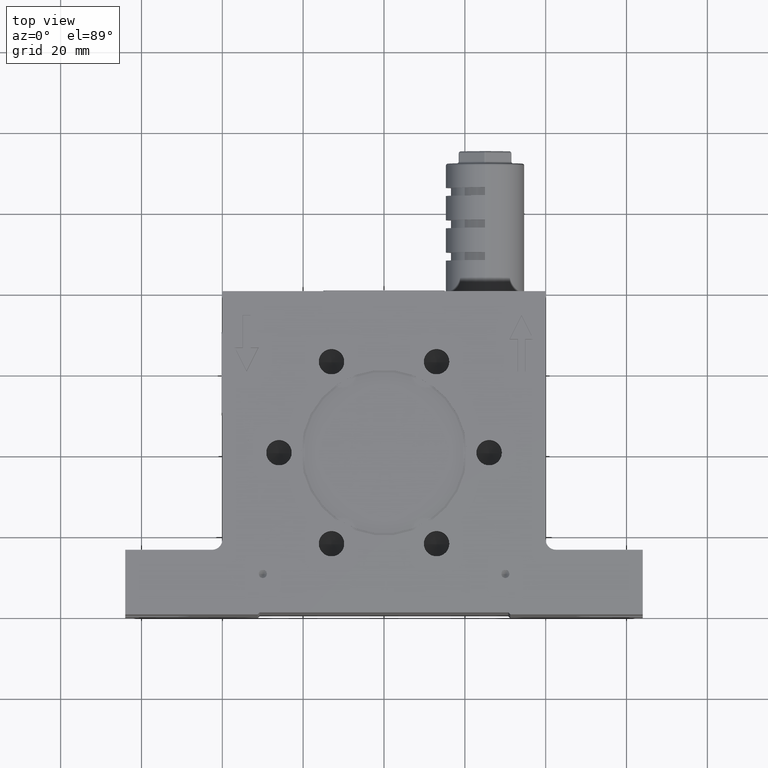
[diagram: clean part render]
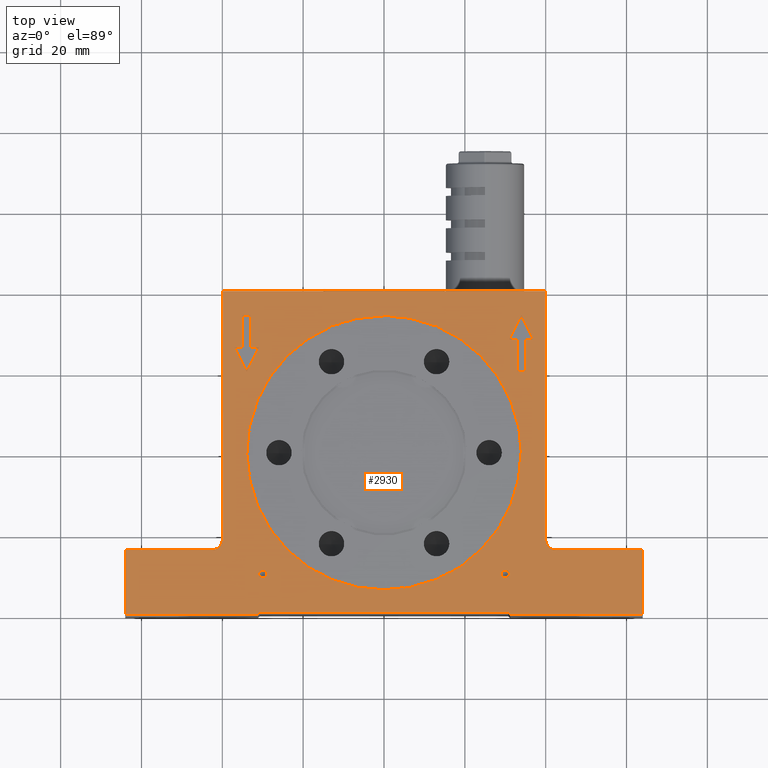
[diagram: same view with one face highlighted and labeled with its STEP entity id]
A machine part, top view. The second image highlights one B-rep face of the part: STEP entity #2930.
In plain terms, the highlighted planar face has unit normal (0, 0, -1).
Its self-contained STEP definition (entity closure, byte-faithful):
#342 = ORIENTED_EDGE ( 'NONE', *, *, #7510, .F. ) ;
#551 = CARTESIAN_POINT ( 'NONE',  ( -42.50000000000000000, -21.50000000000000000, 28.00000000000000000 ) ) ;
#569 = EDGE_CURVE ( 'NONE', #18978, #16020, #17478, .T. ) ;
#574 = VECTOR ( 'NONE', #14555, 1000.000000000000000 ) ;
#695 = DIRECTION ( 'NONE',  ( 8.673617379884039400E-016, -1.000000000000000000, 0.0000000000000000000 ) ) ;
#773 = LINE ( 'NONE', #3795, #19966 ) ;
#827 = FACE_BOUND ( 'NONE', #17860, .T. ) ;
#874 = CARTESIAN_POINT ( 'NONE',  ( 64.00000000000000000, -24.00000000000000000, 28.00000000000000000 ) ) ;
#918 = DIRECTION ( 'NONE',  ( 0.4472135954999575400, 0.8944271909999160800, 0.0000000000000000000 ) ) ;
#952 = CARTESIAN_POINT ( 'NONE',  ( 42.50000000000000000, -24.00000000000000000, 28.00000000000000000 ) ) ;
#987 = VERTEX_POINT ( 'NONE', #15787 ) ;
#999 = VECTOR ( 'NONE', #12358, 1000.000000000000000 ) ;
#1002 = VECTOR ( 'NONE', #8336, 1000.000000000000000 ) ;
#1018 = VERTEX_POINT ( 'NONE', #17572 ) ;
#1026 = VECTOR ( 'NONE', #4516, 1000.000000000000000 ) ;
#1037 = CARTESIAN_POINT ( 'NONE',  ( 40.00000000000000000, -21.50000000000000000, 28.00000000000000000 ) ) ;
#1223 = VECTOR ( 'NONE', #1533, 1000.000000000000000 ) ;
#1396 = VERTEX_POINT ( 'NONE', #10033 ) ;
#1408 = VECTOR ( 'NONE', #695, 1000.000000000000000 ) ;
#1519 = LINE ( 'NONE', #16755, #1002 ) ;
#1525 = CARTESIAN_POINT ( 'NONE',  ( -64.00000000000000000, -40.00000000000000000, 28.00000000000000000 ) ) ;
#1533 = DIRECTION ( 'NONE',  ( 0.7071067811865570100, -0.7071067811865380200, -0.0000000000000000000 ) ) ;
#1576 = VERTEX_POINT ( 'NONE', #19171 ) ;
#1752 = VERTEX_POINT ( 'NONE', #4705 ) ;
#2064 = ORIENTED_EDGE ( 'NONE', *, *, #10287, .T. ) ;
#2207 = LINE ( 'NONE', #10029, #17423 ) ;
#2255 = EDGE_CURVE ( 'NONE', #1752, #14468, #10562, .T. ) ;
#2296 = VERTEX_POINT ( 'NONE', #5503 ) ;
#2496 = VERTEX_POINT ( 'NONE', #1037 ) ;
#2702 = CARTESIAN_POINT ( 'NONE',  ( -35.00000000000000000, 26.00000000000000000, 28.00000000000000000 ) ) ;
#2758 = VECTOR ( 'NONE', #20659, 1000.000000000000000 ) ;
#2809 = ORIENTED_EDGE ( 'NONE', *, *, #6393, .F. ) ;
#2909 = AXIS2_PLACEMENT_3D ( 'NONE', #5555, #9012, #10830 ) ;
#2930 = ADVANCED_FACE ( 'NONE', ( #3982, #20250, #13939, #6094, #18964, #827 ), #7411, .F. ) ;
#2970 = ORIENTED_EDGE ( 'NONE', *, *, #5604, .T. ) ;
#2999 = ORIENTED_EDGE ( 'NONE', *, *, #9069, .F. ) ;
#3076 = EDGE_CURVE ( 'NONE', #19892, #3234, #11325, .T. ) ;
#3202 = VERTEX_POINT ( 'NONE', #9376 ) ;
#3234 = VERTEX_POINT ( 'NONE', #21392 ) ;
#3241 = CARTESIAN_POINT ( 'NONE',  ( 37.00000000000000000, 28.00000000000000000, 28.00000000000000000 ) ) ;
#3260 = CARTESIAN_POINT ( 'NONE',  ( 35.00000000000000000, 28.00000000000000000, 28.00000000000000000 ) ) ;
#3418 = CIRCLE ( 'NONE', #7163, 33.89999999999999900 ) ;
#3492 = EDGE_CURVE ( 'NONE', #14468, #3985, #17635, .T. ) ;
#3560 = ORIENTED_EDGE ( 'NONE', *, *, #13515, .F. ) ;
#3633 = DIRECTION ( 'NONE',  ( 0.0000000000000000000, 0.0000000000000000000, -1.000000000000000000 ) ) ;
#3698 = CARTESIAN_POINT ( 'NONE',  ( -64.00000000000000000, -40.00000000000000000, 28.00000000000000000 ) ) ;
#3716 = ORIENTED_EDGE ( 'NONE', *, *, #6469, .T. ) ;
#3749 = VECTOR ( 'NONE', #10496, 1000.000000000000000 ) ;
#3782 = DIRECTION ( 'NONE',  ( -1.000000000000000000, 0.0000000000000000000, 0.0000000000000000000 ) ) ;
#3795 = CARTESIAN_POINT ( 'NONE',  ( -37.00000000000000000, 26.00000000000000000, 28.00000000000000000 ) ) ;
#3824 = ORIENTED_EDGE ( 'NONE', *, *, #16942, .F. ) ;
#3982 = FACE_BOUND ( 'NONE', #21092, .T. ) ;
#3985 = VERTEX_POINT ( 'NONE', #3260 ) ;
#4062 = VECTOR ( 'NONE', #5859, 1000.000000000000000 ) ;
#4226 = CARTESIAN_POINT ( 'NONE',  ( 33.00000000000000000, 28.00000000000000000, 28.00000000000000000 ) ) ;
#4297 = ORIENTED_EDGE ( 'NONE', *, *, #19732, .T. ) ;
#4392 = CIRCLE ( 'NONE', #14820, 1.000000000000000900 ) ;
#4434 = VECTOR ( 'NONE', #10111, 1000.000000000000000 ) ;
#4442 = CARTESIAN_POINT ( 'NONE',  ( 30.00000000000000000, -30.00000000000000000, 28.00000000000000000 ) ) ;
#4502 = VERTEX_POINT ( 'NONE', #5466 ) ;
#4516 = DIRECTION ( 'NONE',  ( 1.000000000000000000, 0.0000000000000000000, 0.0000000000000000000 ) ) ;
#4562 = ORIENTED_EDGE ( 'NONE', *, *, #5342, .F. ) ;
#4603 = VERTEX_POINT ( 'NONE', #19090 ) ;
#4705 = CARTESIAN_POINT ( 'NONE',  ( 33.00000000000000000, 20.00000000000000000, 28.00000000000000000 ) ) ;
#4739 = ORIENTED_EDGE ( 'NONE', *, *, #3492, .F. ) ;
#4882 = VECTOR ( 'NONE', #14252, 1000.000000000000000 ) ;
#5207 = CARTESIAN_POINT ( 'NONE',  ( -31.00000000000000000, 26.00000000000000000, 28.00000000000000000 ) ) ;
#5321 = CARTESIAN_POINT ( 'NONE',  ( -31.00000000000000000, -30.00000000000000000, 28.00000000000000000 ) ) ;
#5342 = EDGE_CURVE ( 'NONE', #13895, #16638, #10484, .T. ) ;
#5406 = ORIENTED_EDGE ( 'NONE', *, *, #8825, .F. ) ;
#5460 = DIRECTION ( 'NONE',  ( 0.0000000000000000000, 0.0000000000000000000, -1.000000000000000000 ) ) ;
#5466 = CARTESIAN_POINT ( 'NONE',  ( 37.00000000000000000, 28.00000000000000000, 28.00000000000000000 ) ) ;
#5503 = CARTESIAN_POINT ( 'NONE',  ( -64.00000000000000000, -40.00000000000000000, 28.00000000000000000 ) ) ;
#5555 = CARTESIAN_POINT ( 'NONE',  ( -64.00000000000000000, 40.00000000000000000, 28.00000000000000000 ) ) ;
#5604 = EDGE_CURVE ( 'NONE', #8416, #2496, #12551, .T. ) ;
#5772 = EDGE_CURVE ( 'NONE', #10879, #17025, #11267, .T. ) ;
#5859 = DIRECTION ( 'NONE',  ( 0.0000000000000000000, 1.000000000000000000, 0.0000000000000000000 ) ) ;
#6052 = VECTOR ( 'NONE', #18138, 1000.000000000000000 ) ;
#6094 = FACE_OUTER_BOUND ( 'NONE', #16453, .T. ) ;
#6133 = DIRECTION ( 'NONE',  ( 0.0000000000000000000, 0.0000000000000000000, 1.000000000000000000 ) ) ;
#6149 = ORIENTED_EDGE ( 'NONE', *, *, #569, .F. ) ;
#6154 = VECTOR ( 'NONE', #8092, 1000.000000000000000 ) ;
#6330 = CARTESIAN_POINT ( 'NONE',  ( -64.00000000000000000, -24.00000000000000000, 28.00000000000000000 ) ) ;
#6393 = EDGE_CURVE ( 'NONE', #18635, #20153, #12273, .T. ) ;
#6406 = DIRECTION ( 'NONE',  ( 1.000000000000000000, 0.0000000000000000000, 0.0000000000000000000 ) ) ;
#6469 = EDGE_CURVE ( 'NONE', #4603, #2296, #1519, .T. ) ;
#6477 = VERTEX_POINT ( 'NONE', #18183 ) ;
#6581 = DIRECTION ( 'NONE',  ( 1.000000000000000000, 0.0000000000000000000, 0.0000000000000000000 ) ) ;
#6908 = CARTESIAN_POINT ( 'NONE',  ( -35.00000000000000000, 34.00000000000000000, 28.00000000000000000 ) ) ;
#7035 = ORIENTED_EDGE ( 'NONE', *, *, #11251, .F. ) ;
#7094 = VECTOR ( 'NONE', #20549, 1000.000000000000000 ) ;
#7163 = AXIS2_PLACEMENT_3D ( 'NONE', #11361, #14648, #11506 ) ;
#7194 = CARTESIAN_POINT ( 'NONE',  ( -30.00000000000000000, -30.00000000000000000, 28.00000000000000000 ) ) ;
#7363 = CARTESIAN_POINT ( 'NONE',  ( 35.00000000000000000, 20.00000000000000000, 28.00000000000000000 ) ) ;
#7411 = PLANE ( 'NONE',  #2909 ) ;
#7447 = AXIS2_PLACEMENT_3D ( 'NONE', #17890, #16103, #19345 ) ;
#7510 = EDGE_CURVE ( 'NONE', #6477, #10720, #4392, .T. ) ;
#7534 = CARTESIAN_POINT ( 'NONE',  ( 40.00000000000000000, 40.00000000000000000, 28.00000000000000000 ) ) ;
#7724 = ORIENTED_EDGE ( 'NONE', *, *, #2255, .F. ) ;
#7737 = CARTESIAN_POINT ( 'NONE',  ( -34.00000000000000000, 20.00000000000000000, 28.00000000000000000 ) ) ;
#7980 = CARTESIAN_POINT ( 'NONE',  ( 30.75000000000000000, -39.50000000000000000, 28.00000000000000000 ) ) ;
#8092 = DIRECTION ( 'NONE',  ( -1.000000000000000000, 0.0000000000000000000, 0.0000000000000000000 ) ) ;
#8163 = LINE ( 'NONE', #11792, #17609 ) ;
#8180 = CARTESIAN_POINT ( 'NONE',  ( 35.00000000000000000, 20.00000000000000000, 28.00000000000000000 ) ) ;
#8182 = EDGE_CURVE ( 'NONE', #4502, #1396, #12474, .T. ) ;
#8228 = DIRECTION ( 'NONE',  ( -0.4472135954999583700, 0.8944271909999157400, 0.0000000000000000000 ) ) ;
#8336 = DIRECTION ( 'NONE',  ( 0.0000000000000000000, -1.000000000000000000, 0.0000000000000000000 ) ) ;
#8394 = DIRECTION ( 'NONE',  ( 0.0000000000000000000, 0.0000000000000000000, 1.000000000000000000 ) ) ;
#8416 = VERTEX_POINT ( 'NONE', #952 ) ;
#8490 = DIRECTION ( 'NONE',  ( -1.000000000000000000, 0.0000000000000000000, 0.0000000000000000000 ) ) ;
#8555 = LINE ( 'NONE', #7534, #4882 ) ;
#8708 = CARTESIAN_POINT ( 'NONE',  ( 42.50000000000000000, -21.50000000000000000, 28.00000000000000000 ) ) ;
#8825 = EDGE_CURVE ( 'NONE', #10554, #2496, #8555, .T. ) ;
#9012 = DIRECTION ( 'NONE',  ( 0.0000000000000000000, 0.0000000000000000000, -1.000000000000000000 ) ) ;
#9069 = EDGE_CURVE ( 'NONE', #3985, #4502, #9333, .T. ) ;
#9093 = VECTOR ( 'NONE', #8228, 999.9999999999998900 ) ;
#9333 = LINE ( 'NONE', #14977, #11669 ) ;
#9376 = CARTESIAN_POINT ( 'NONE',  ( -34.00000000000000000, 20.00000000000000000, 28.00000000000000000 ) ) ;
#9404 = VERTEX_POINT ( 'NONE', #16288 ) ;
#9425 = VECTOR ( 'NONE', #10801, 1000.000000000000000 ) ;
#9471 = VERTEX_POINT ( 'NONE', #10052 ) ;
#9733 = DIRECTION ( 'NONE',  ( 1.000000000000000000, 0.0000000000000000000, 0.0000000000000000000 ) ) ;
#9789 = EDGE_CURVE ( 'NONE', #9471, #18359, #10597, .T. ) ;
#9936 = DIRECTION ( 'NONE',  ( 0.0000000000000000000, 0.0000000000000000000, 1.000000000000000000 ) ) ;
#9990 = AXIS2_PLACEMENT_3D ( 'NONE', #11542, #8394, #20051 ) ;
#10029 = CARTESIAN_POINT ( 'NONE',  ( -64.00000000000000000, 40.00000000000000000, 28.00000000000000000 ) ) ;
#10033 = CARTESIAN_POINT ( 'NONE',  ( 34.00000000000000000, 34.00000000000000000, 28.00000000000000000 ) ) ;
#10052 = CARTESIAN_POINT ( 'NONE',  ( -33.00000000000000000, 34.00000000000000000, 28.00000000000000000 ) ) ;
#10059 = VERTEX_POINT ( 'NONE', #5207 ) ;
#10106 = EDGE_CURVE ( 'NONE', #11761, #1576, #17727, .T. ) ;
#10111 = DIRECTION ( 'NONE',  ( 1.000000000000000000, 0.0000000000000000000, 0.0000000000000000000 ) ) ;
#10124 = VERTEX_POINT ( 'NONE', #17523 ) ;
#10287 = EDGE_CURVE ( 'NONE', #9404, #1018, #20567, .T. ) ;
#10484 = CIRCLE ( 'NONE', #9990, 33.89999999999999900 ) ;
#10496 = DIRECTION ( 'NONE',  ( 1.000000000000000000, 0.0000000000000000000, 0.0000000000000000000 ) ) ;
#10500 = CIRCLE ( 'NONE', #7447, 1.000000000000000900 ) ;
#10554 = VERTEX_POINT ( 'NONE', #17066 ) ;
#10562 = LINE ( 'NONE', #20397, #3749 ) ;
#10597 = LINE ( 'NONE', #12841, #6154 ) ;
#10618 = DIRECTION ( 'NONE',  ( 1.000000000000000000, 0.0000000000000000000, 0.0000000000000000000 ) ) ;
#10677 = EDGE_CURVE ( 'NONE', #20153, #1752, #11386, .T. ) ;
#10685 = CARTESIAN_POINT ( 'NONE',  ( -31.25000000000000000, -39.50000000000000000, 28.00000000000000000 ) ) ;
#10720 = VERTEX_POINT ( 'NONE', #17355 ) ;
#10790 = CARTESIAN_POINT ( 'NONE',  ( -33.00000000000000000, 34.00000000000000000, 28.00000000000000000 ) ) ;
#10801 = DIRECTION ( 'NONE',  ( 0.0000000000000000000, -1.000000000000000000, 0.0000000000000000000 ) ) ;
#10830 = DIRECTION ( 'NONE',  ( -1.000000000000000000, 0.0000000000000000000, 0.0000000000000000000 ) ) ;
#10879 = VERTEX_POINT ( 'NONE', #14757 ) ;
#10891 = EDGE_CURVE ( 'NONE', #16020, #18978, #15816, .T. ) ;
#10919 = CARTESIAN_POINT ( 'NONE',  ( -28.99999999999999600, -30.00000000000000000, 28.00000000000000000 ) ) ;
#11251 = EDGE_CURVE ( 'NONE', #14050, #9471, #18460, .T. ) ;
#11258 = CARTESIAN_POINT ( 'NONE',  ( 31.00000000000000000, 28.00000000000000000, 28.00000000000000000 ) ) ;
#11267 = CIRCLE ( 'NONE', #18296, 2.500000000000002200 ) ;
#11325 = LINE ( 'NONE', #2702, #574 ) ;
#11361 = CARTESIAN_POINT ( 'NONE',  ( 0.0000000000000000000, 0.0000000000000000000, 28.00000000000000000 ) ) ;
#11386 = LINE ( 'NONE', #4226, #1408 ) ;
#11461 = ORIENTED_EDGE ( 'NONE', *, *, #21183, .F. ) ;
#11482 = ORIENTED_EDGE ( 'NONE', *, *, #14711, .F. ) ;
#11506 = DIRECTION ( 'NONE',  ( 1.000000000000000000, 0.0000000000000000000, 0.0000000000000000000 ) ) ;
#11542 = CARTESIAN_POINT ( 'NONE',  ( 0.0000000000000000000, 0.0000000000000000000, 28.00000000000000000 ) ) ;
#11557 = LINE ( 'NONE', #14722, #6052 ) ;
#11669 = VECTOR ( 'NONE', #9733, 1000.000000000000000 ) ;
#11757 = VECTOR ( 'NONE', #6406, 1000.000000000000000 ) ;
#11761 = VERTEX_POINT ( 'NONE', #17752 ) ;
#11792 = CARTESIAN_POINT ( 'NONE',  ( -40.00000000000000000, 40.00000000000000000, 28.00000000000000000 ) ) ;
#11825 = VECTOR ( 'NONE', #13216, 1000.000000000000000 ) ;
#11939 = ORIENTED_EDGE ( 'NONE', *, *, #14957, .F. ) ;
#12091 = ORIENTED_EDGE ( 'NONE', *, *, #9789, .F. ) ;
#12273 = LINE ( 'NONE', #11258, #1026 ) ;
#12358 = DIRECTION ( 'NONE',  ( -1.000000000000000000, -1.110223024625155900E-016, 0.0000000000000000000 ) ) ;
#12474 = LINE ( 'NONE', #3241, #9093 ) ;
#12551 = CIRCLE ( 'NONE', #21658, 2.500000000000002200 ) ;
#12607 = DIRECTION ( 'NONE',  ( 1.734723475976805100E-015, 1.000000000000000000, 0.0000000000000000000 ) ) ;
#12655 = CARTESIAN_POINT ( 'NONE',  ( 64.00000000000000000, -40.00000000000000000, 28.00000000000000000 ) ) ;
#12694 = VECTOR ( 'NONE', #19221, 1000.000000000000100 ) ;
#12763 = CARTESIAN_POINT ( 'NONE',  ( -35.00000000000000000, 34.00000000000000000, 28.00000000000000000 ) ) ;
#12792 = ORIENTED_EDGE ( 'NONE', *, *, #18189, .T. ) ;
#12841 = CARTESIAN_POINT ( 'NONE',  ( -35.00000000000000000, 34.00000000000000000, 28.00000000000000000 ) ) ;
#12862 = DIRECTION ( 'NONE',  ( 1.000000000000000000, 0.0000000000000000000, 0.0000000000000000000 ) ) ;
#13179 = EDGE_CURVE ( 'NONE', #10879, #987, #8163, .T. ) ;
#13216 = DIRECTION ( 'NONE',  ( 0.0000000000000000000, 1.000000000000000000, 0.0000000000000000000 ) ) ;
#13332 = DIRECTION ( 'NONE',  ( 0.0000000000000000000, 1.000000000000000000, 0.0000000000000000000 ) ) ;
#13515 = EDGE_CURVE ( 'NONE', #10720, #6477, #10500, .T. ) ;
#13562 = VECTOR ( 'NONE', #918, 1000.000000000000000 ) ;
#13607 = AXIS2_PLACEMENT_3D ( 'NONE', #16677, #9936, #6581 ) ;
#13846 = EDGE_CURVE ( 'NONE', #2296, #11761, #14933, .T. ) ;
#13895 = VERTEX_POINT ( 'NONE', #14012 ) ;
#13939 = FACE_BOUND ( 'NONE', #20598, .T. ) ;
#13968 = DIRECTION ( 'NONE',  ( 0.4472135954999591500, -0.8944271909999153000, 0.0000000000000000000 ) ) ;
#14012 = CARTESIAN_POINT ( 'NONE',  ( 33.89999999999999900, 0.0000000000000000000, 28.00000000000000000 ) ) ;
#14014 = VECTOR ( 'NONE', #18546, 1000.000000000000000 ) ;
#14050 = VERTEX_POINT ( 'NONE', #16907 ) ;
#14110 = CARTESIAN_POINT ( 'NONE',  ( -42.50000000000000000, -24.00000000000000000, 28.00000000000000000 ) ) ;
#14252 = DIRECTION ( 'NONE',  ( 0.0000000000000000000, -1.000000000000000000, 0.0000000000000000000 ) ) ;
#14387 = LINE ( 'NONE', #10685, #999 ) ;
#14468 = VERTEX_POINT ( 'NONE', #7363 ) ;
#14479 = ORIENTED_EDGE ( 'NONE', *, *, #8182, .F. ) ;
#14555 = DIRECTION ( 'NONE',  ( -1.000000000000000000, 1.734723475976800000E-015, 0.0000000000000000000 ) ) ;
#14648 = DIRECTION ( 'NONE',  ( 0.0000000000000000000, 0.0000000000000000000, 1.000000000000000000 ) ) ;
#14711 = EDGE_CURVE ( 'NONE', #4603, #17025, #19395, .T. ) ;
#14722 = CARTESIAN_POINT ( 'NONE',  ( 34.00000000000000000, 34.00000000000000000, 28.00000000000000000 ) ) ;
#14757 = CARTESIAN_POINT ( 'NONE',  ( -40.00000000000000000, -21.50000000000000000, 28.00000000000000000 ) ) ;
#14820 = AXIS2_PLACEMENT_3D ( 'NONE', #4442, #6133, #12862 ) ;
#14909 = LINE ( 'NONE', #12763, #9425 ) ;
#14933 = LINE ( 'NONE', #3698, #7094 ) ;
#14957 = EDGE_CURVE ( 'NONE', #20112, #1576, #14387, .T. ) ;
#14977 = CARTESIAN_POINT ( 'NONE',  ( 35.00000000000000000, 28.00000000000000000, 28.00000000000000000 ) ) ;
#15183 = ORIENTED_EDGE ( 'NONE', *, *, #16699, .F. ) ;
#15185 = ORIENTED_EDGE ( 'NONE', *, *, #13179, .F. ) ;
#15229 = EDGE_LOOP ( 'NONE', ( #19567, #3824, #20158, #17205, #12091, #7035, #11461 ) ) ;
#15509 = EDGE_CURVE ( 'NONE', #3202, #10059, #18316, .T. ) ;
#15592 = DIRECTION ( 'NONE',  ( 0.0000000000000000000, 0.0000000000000000000, 1.000000000000000000 ) ) ;
#15596 = CARTESIAN_POINT ( 'NONE',  ( -7.625000000000000000, -16.37500000000000000, 28.00000000000000000 ) ) ;
#15787 = CARTESIAN_POINT ( 'NONE',  ( -40.00000000000000000, 40.00000000000000000, 28.00000000000000000 ) ) ;
#15816 = CIRCLE ( 'NONE', #13607, 1.000000000000000900 ) ;
#16020 = VERTEX_POINT ( 'NONE', #10919 ) ;
#16103 = DIRECTION ( 'NONE',  ( 0.0000000000000000000, 0.0000000000000000000, 1.000000000000000000 ) ) ;
#16288 = CARTESIAN_POINT ( 'NONE',  ( 64.00000000000000000, -40.00000000000000000, 28.00000000000000000 ) ) ;
#16453 = EDGE_LOOP ( 'NONE', ( #20983, #18137, #11939, #4297, #12792, #2064, #18325, #2970, #5406, #16991, #15185, #20170, #11482, #3716 ) ) ;
#16638 = VERTEX_POINT ( 'NONE', #19444 ) ;
#16677 = CARTESIAN_POINT ( 'NONE',  ( -30.00000000000000000, -30.00000000000000000, 28.00000000000000000 ) ) ;
#16699 = EDGE_CURVE ( 'NONE', #16638, #13895, #3418, .T. ) ;
#16755 = CARTESIAN_POINT ( 'NONE',  ( -64.00000000000000000, -40.00000000000000000, 28.00000000000000000 ) ) ;
#16777 = CARTESIAN_POINT ( 'NONE',  ( -31.00000000000000000, 26.00000000000000000, 28.00000000000000000 ) ) ;
#16787 = EDGE_CURVE ( 'NONE', #1396, #18635, #11557, .T. ) ;
#16907 = CARTESIAN_POINT ( 'NONE',  ( -33.00000000000000000, 26.00000000000000000, 28.00000000000000000 ) ) ;
#16942 = EDGE_CURVE ( 'NONE', #3234, #3202, #773, .T. ) ;
#16991 = ORIENTED_EDGE ( 'NONE', *, *, #21220, .T. ) ;
#17025 = VERTEX_POINT ( 'NONE', #14110 ) ;
#17066 = CARTESIAN_POINT ( 'NONE',  ( 40.00000000000000000, 40.00000000000000000, 28.00000000000000000 ) ) ;
#17197 = LINE ( 'NONE', #874, #2758 ) ;
#17205 = ORIENTED_EDGE ( 'NONE', *, *, #17492, .F. ) ;
#17347 = DIRECTION ( 'NONE',  ( -1.000000000000000000, 0.0000000000000000000, 0.0000000000000000000 ) ) ;
#17355 = CARTESIAN_POINT ( 'NONE',  ( 31.00000000000000000, -30.00000000000000000, 28.00000000000000000 ) ) ;
#17423 = VECTOR ( 'NONE', #3782, 1000.000000000000000 ) ;
#17478 = CIRCLE ( 'NONE', #17957, 1.000000000000000900 ) ;
#17492 = EDGE_CURVE ( 'NONE', #18359, #19892, #14909, .T. ) ;
#17523 = CARTESIAN_POINT ( 'NONE',  ( 31.25000000000000000, -40.00000000000000000, 28.00000000000000000 ) ) ;
#17572 = CARTESIAN_POINT ( 'NONE',  ( 64.00000000000000000, -24.00000000000000000, 28.00000000000000000 ) ) ;
#17609 = VECTOR ( 'NONE', #13332, 1000.000000000000000 ) ;
#17635 = LINE ( 'NONE', #8180, #11825 ) ;
#17727 = LINE ( 'NONE', #15596, #12694 ) ;
#17752 = CARTESIAN_POINT ( 'NONE',  ( -31.25000000000000000, -40.00000000000000000, 28.00000000000000000 ) ) ;
#17860 = EDGE_LOOP ( 'NONE', ( #3560, #342 ) ) ;
#17890 = CARTESIAN_POINT ( 'NONE',  ( 30.00000000000000000, -30.00000000000000000, 28.00000000000000000 ) ) ;
#17957 = AXIS2_PLACEMENT_3D ( 'NONE', #7194, #15592, #10618 ) ;
#18137 = ORIENTED_EDGE ( 'NONE', *, *, #10106, .T. ) ;
#18138 = DIRECTION ( 'NONE',  ( -0.4472135954999579300, -0.8944271909999158600, 0.0000000000000000000 ) ) ;
#18183 = CARTESIAN_POINT ( 'NONE',  ( 28.99999999999999600, -30.00000000000000000, 28.00000000000000000 ) ) ;
#18189 = EDGE_CURVE ( 'NONE', #10124, #9404, #19928, .T. ) ;
#18213 = CARTESIAN_POINT ( 'NONE',  ( -56.37500000000130000, 47.62499999999889900, 28.00000000000000000 ) ) ;
#18296 = AXIS2_PLACEMENT_3D ( 'NONE', #551, #5460, #17347 ) ;
#18316 = LINE ( 'NONE', #7737, #13562 ) ;
#18325 = ORIENTED_EDGE ( 'NONE', *, *, #20870, .F. ) ;
#18359 = VERTEX_POINT ( 'NONE', #6908 ) ;
#18460 = LINE ( 'NONE', #10790, #18982 ) ;
#18513 = LINE ( 'NONE', #16777, #14014 ) ;
#18546 = DIRECTION ( 'NONE',  ( -1.000000000000000000, 0.0000000000000000000, 0.0000000000000000000 ) ) ;
#18635 = VERTEX_POINT ( 'NONE', #18783 ) ;
#18721 = ORIENTED_EDGE ( 'NONE', *, *, #10891, .F. ) ;
#18783 = CARTESIAN_POINT ( 'NONE',  ( 31.00000000000000000, 28.00000000000000000, 28.00000000000000000 ) ) ;
#18950 = EDGE_LOOP ( 'NONE', ( #4562, #15183 ) ) ;
#18964 = FACE_BOUND ( 'NONE', #18950, .T. ) ;
#18978 = VERTEX_POINT ( 'NONE', #5321 ) ;
#18982 = VECTOR ( 'NONE', #12607, 1000.000000000000000 ) ;
#19046 = CARTESIAN_POINT ( 'NONE',  ( 33.00000000000000000, 28.00000000000000000, 28.00000000000000000 ) ) ;
#19076 = LINE ( 'NONE', #18213, #1223 ) ;
#19090 = CARTESIAN_POINT ( 'NONE',  ( -64.00000000000000000, -24.00000000000000000, 28.00000000000000000 ) ) ;
#19171 = CARTESIAN_POINT ( 'NONE',  ( -30.75000000000000000, -39.50000000000000000, 28.00000000000000000 ) ) ;
#19221 = DIRECTION ( 'NONE',  ( 0.7071067811865474600, 0.7071067811865474600, -0.0000000000000000000 ) ) ;
#19300 = ORIENTED_EDGE ( 'NONE', *, *, #16787, .F. ) ;
#19345 = DIRECTION ( 'NONE',  ( 1.000000000000000000, 0.0000000000000000000, 0.0000000000000000000 ) ) ;
#19395 = LINE ( 'NONE', #6330, #11757 ) ;
#19444 = CARTESIAN_POINT ( 'NONE',  ( -33.89999999999999900, 4.151552649109527200E-015, 28.00000000000000000 ) ) ;
#19567 = ORIENTED_EDGE ( 'NONE', *, *, #15509, .F. ) ;
#19732 = EDGE_CURVE ( 'NONE', #20112, #10124, #19076, .T. ) ;
#19892 = VERTEX_POINT ( 'NONE', #20714 ) ;
#19928 = LINE ( 'NONE', #1525, #4434 ) ;
#19966 = VECTOR ( 'NONE', #13968, 1000.000000000000000 ) ;
#20051 = DIRECTION ( 'NONE',  ( 1.000000000000000000, 0.0000000000000000000, 0.0000000000000000000 ) ) ;
#20112 = VERTEX_POINT ( 'NONE', #7980 ) ;
#20153 = VERTEX_POINT ( 'NONE', #19046 ) ;
#20158 = ORIENTED_EDGE ( 'NONE', *, *, #3076, .F. ) ;
#20170 = ORIENTED_EDGE ( 'NONE', *, *, #5772, .T. ) ;
#20250 = FACE_BOUND ( 'NONE', #15229, .T. ) ;
#20397 = CARTESIAN_POINT ( 'NONE',  ( 33.00000000000000000, 20.00000000000000000, 28.00000000000000000 ) ) ;
#20549 = DIRECTION ( 'NONE',  ( 1.000000000000000000, 0.0000000000000000000, 0.0000000000000000000 ) ) ;
#20567 = LINE ( 'NONE', #12655, #4062 ) ;
#20598 = EDGE_LOOP ( 'NONE', ( #18721, #6149 ) ) ;
#20659 = DIRECTION ( 'NONE',  ( 1.000000000000000000, 0.0000000000000000000, 0.0000000000000000000 ) ) ;
#20714 = CARTESIAN_POINT ( 'NONE',  ( -35.00000000000000000, 26.00000000000000000, 28.00000000000000000 ) ) ;
#20870 = EDGE_CURVE ( 'NONE', #8416, #1018, #17197, .T. ) ;
#20983 = ORIENTED_EDGE ( 'NONE', *, *, #13846, .T. ) ;
#21092 = EDGE_LOOP ( 'NONE', ( #21562, #2809, #19300, #14479, #2999, #4739, #7724 ) ) ;
#21183 = EDGE_CURVE ( 'NONE', #10059, #14050, #18513, .T. ) ;
#21220 = EDGE_CURVE ( 'NONE', #10554, #987, #2207, .T. ) ;
#21392 = CARTESIAN_POINT ( 'NONE',  ( -37.00000000000000000, 26.00000000000000000, 28.00000000000000000 ) ) ;
#21562 = ORIENTED_EDGE ( 'NONE', *, *, #10677, .F. ) ;
#21658 = AXIS2_PLACEMENT_3D ( 'NONE', #8708, #3633, #8490 ) ;